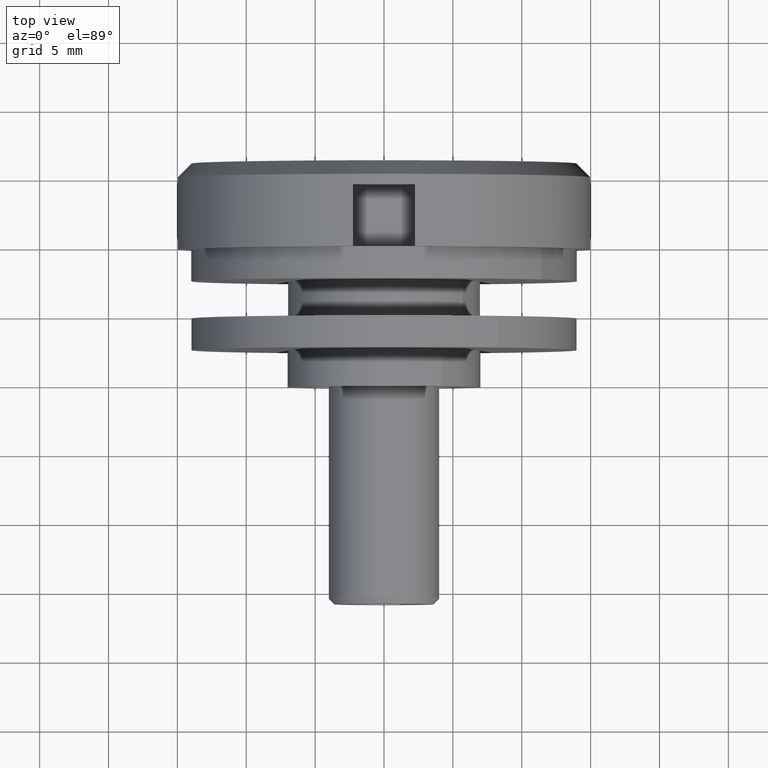
[diagram: clean part render]
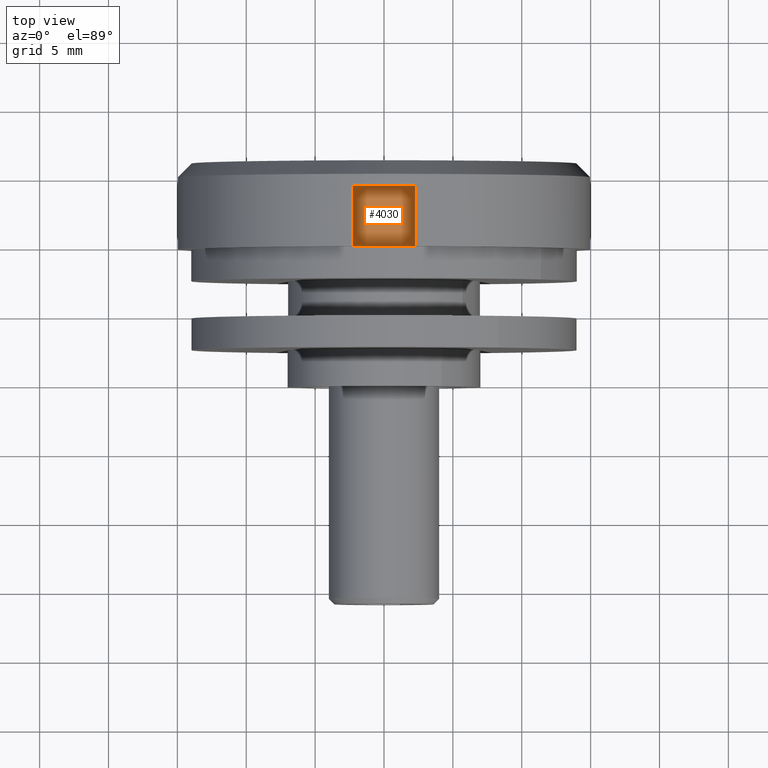
[diagram: same view with one face highlighted and labeled with its STEP entity id]
A machine part, top view. The second image highlights one B-rep face of the part: STEP entity #4030.
In plain terms, the highlighted planar face has unit normal (0, 0, -1).
Its self-contained STEP definition (entity closure, byte-faithful):
#193 = VECTOR ( 'NONE', #2671, 1000.000000000000000 ) ;
#398 = DIRECTION ( 'NONE',  ( 0.0000000000000000000, 0.0000000000000000000, -1.000000000000000000 ) ) ;
#452 = PLANE ( 'NONE',  #10826 ) ;
#664 = DIRECTION ( 'NONE',  ( 1.000000000000000000, 0.0000000000000000000, 0.0000000000000000000 ) ) ;
#1061 = EDGE_CURVE ( 'NONE', #9686, #3311, #12886, .T. ) ;
#1203 = FACE_OUTER_BOUND ( 'NONE', #13274, .T. ) ;
#1534 = CARTESIAN_POINT ( 'NONE',  ( -2.250000000000000400, 9.249999999999998200, 10.33028994996389100 ) ) ;
#1849 = CARTESIAN_POINT ( 'NONE',  ( -2.250000000000000400, 4.749999999999999100, 10.33028994996389100 ) ) ;
#2671 = DIRECTION ( 'NONE',  ( -0.0000000000000000000, -1.000000000000000000, -0.0000000000000000000 ) ) ;
#2717 = CARTESIAN_POINT ( 'NONE',  ( -2.250000000000000400, 9.249999999999998200, 10.33028994996389100 ) ) ;
#3052 = CARTESIAN_POINT ( 'NONE',  ( -2.250000000000000400, 4.749999999999999100, 10.33028994996389100 ) ) ;
#3082 = LINE ( 'NONE', #2717, #193 ) ;
#3311 = VERTEX_POINT ( 'NONE', #10002 ) ;
#3639 = EDGE_CURVE ( 'NONE', #4041, #9686, #3082, .T. ) ;
#3990 = ORIENTED_EDGE ( 'NONE', *, *, #14105, .F. ) ;
#4030 = ADVANCED_FACE ( 'NONE', ( #1203 ), #452, .F. ) ;
#4041 = VERTEX_POINT ( 'NONE', #1534 ) ;
#4153 = LINE ( 'NONE', #9750, #7416 ) ;
#4327 = DIRECTION ( 'NONE',  ( 1.000000000000000000, 0.0000000000000000000, 0.0000000000000000000 ) ) ;
#5029 = ORIENTED_EDGE ( 'NONE', *, *, #7068, .F. ) ;
#5680 = VECTOR ( 'NONE', #664, 1000.000000000000000 ) ;
#6600 = ORIENTED_EDGE ( 'NONE', *, *, #1061, .T. ) ;
#6925 = DIRECTION ( 'NONE',  ( -1.000000000000000000, 0.0000000000000000000, -0.0000000000000000000 ) ) ;
#6936 = ORIENTED_EDGE ( 'NONE', *, *, #3639, .T. ) ;
#7068 = EDGE_CURVE ( 'NONE', #11598, #3311, #8394, .T. ) ;
#7416 = VECTOR ( 'NONE', #4327, 1000.000000000000000 ) ;
#7599 = DIRECTION ( 'NONE',  ( -0.0000000000000000000, -1.000000000000000000, -0.0000000000000000000 ) ) ;
#8394 = LINE ( 'NONE', #9818, #9594 ) ;
#9594 = VECTOR ( 'NONE', #7599, 1000.000000000000000 ) ;
#9686 = VERTEX_POINT ( 'NONE', #3052 ) ;
#9750 = CARTESIAN_POINT ( 'NONE',  ( -2.250000000000000400, 9.249999999999998200, 10.33028994996389100 ) ) ;
#9818 = CARTESIAN_POINT ( 'NONE',  ( 2.250000000000000000, 9.249999999999998200, 10.33028994996389100 ) ) ;
#10002 = CARTESIAN_POINT ( 'NONE',  ( 2.250000000000000000, 4.749999999999999100, 10.33028994996389100 ) ) ;
#10826 = AXIS2_PLACEMENT_3D ( 'NONE', #11465, #398, #6925 ) ;
#11465 = CARTESIAN_POINT ( 'NONE',  ( -2.250000000000000400, 9.249999999999998200, 10.33028994996389100 ) ) ;
#11598 = VERTEX_POINT ( 'NONE', #12560 ) ;
#12560 = CARTESIAN_POINT ( 'NONE',  ( 2.250000000000000000, 9.249999999999998200, 10.33028994996389100 ) ) ;
#12886 = LINE ( 'NONE', #1849, #5680 ) ;
#13274 = EDGE_LOOP ( 'NONE', ( #6600, #5029, #3990, #6936 ) ) ;
#14105 = EDGE_CURVE ( 'NONE', #4041, #11598, #4153, .T. ) ;